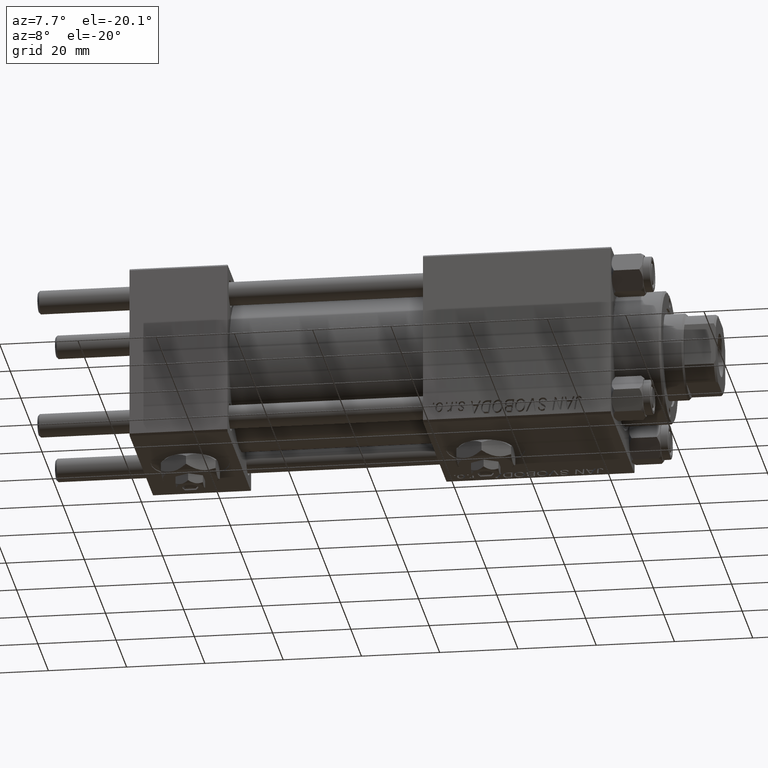
[diagram: clean part render]
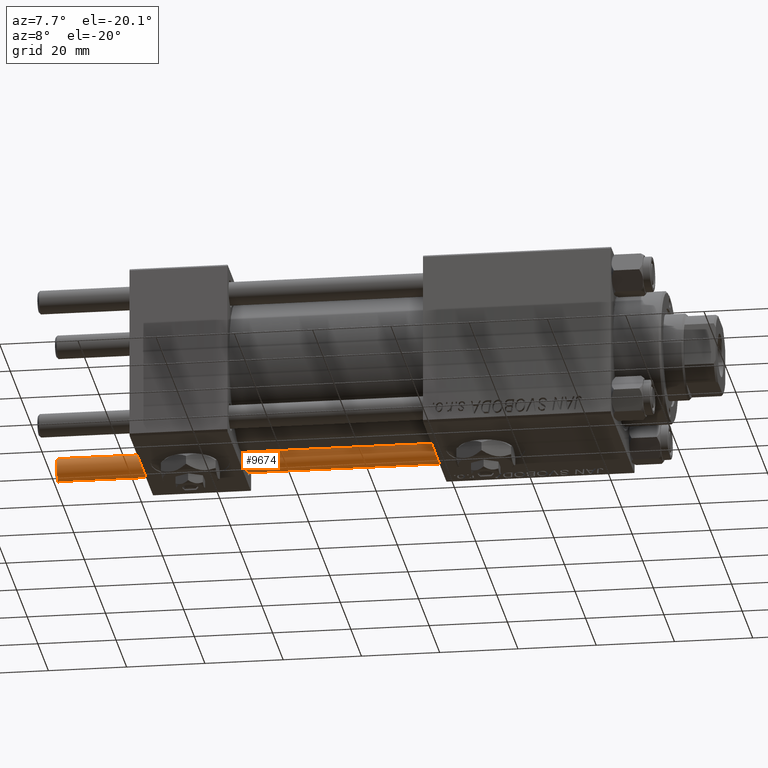
[diagram: same view with one face highlighted and labeled with its STEP entity id]
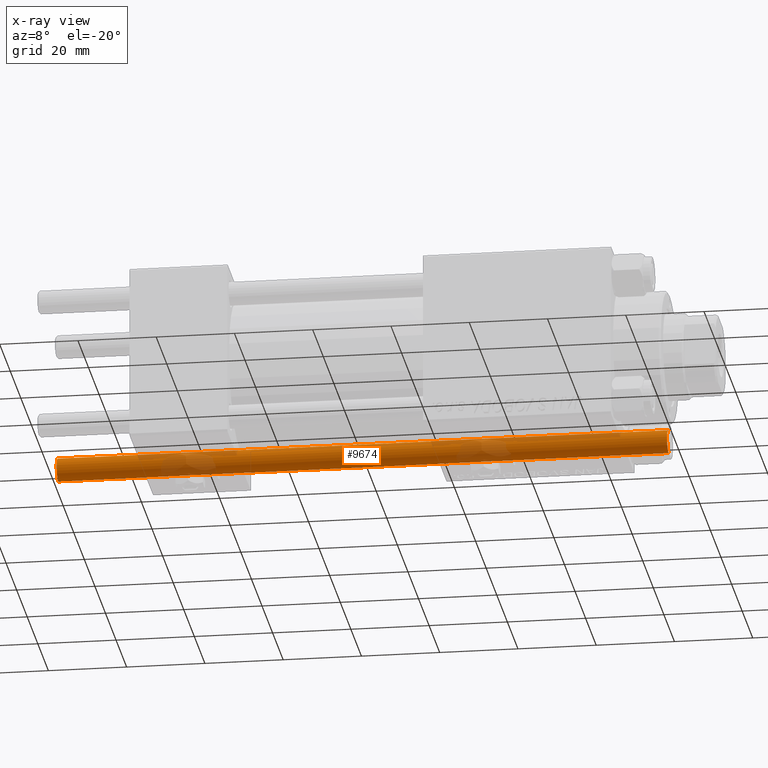
[diagram: x-ray of the same camera — body ghosted, the highlighted face saturated]
A machine part, auxiliary view. The second image highlights one B-rep face of the part: STEP entity #9674.
The next image is the same camera in x-ray: the body ghosted, the highlighted face saturated — about 23% of this face is hidden behind the body in this view.
In plain terms, the highlighted cylindrical surface (edge-blend (fillet) strip) has radius 3 mm, axis along (1, 0, -0).
Its self-contained STEP definition (entity closure, byte-faithful):
#2583 = AXIS2_PLACEMENT_3D ( 'NONE', #49003, #31877, #8993 ) ;
#3523 = CARTESIAN_POINT ( 'NONE',  ( 3.000000000000000444, 3.673940397442060361E-16, 157.0000000000000000 ) ) ;
#4292 = VERTEX_POINT ( 'NONE', #47433 ) ;
#6679 = EDGE_CURVE ( 'NONE', #4292, #27499, #40119, .T. ) ;
#8993 = DIRECTION ( 'NONE',  ( 1.000000000000000000, 0.000000000000000000, 0.000000000000000000 ) ) ;
#9674 = ADVANCED_FACE ( 'NONE', ( #49037 ), #29008, .T. ) ;
#9785 = CARTESIAN_POINT ( 'NONE',  ( 0.000000000000000000, 0.000000000000000000, 157.0000000000000000 ) ) ;
#11453 = ORIENTED_EDGE ( 'NONE', *, *, #14252, .F. ) ;
#12048 = ORIENTED_EDGE ( 'NONE', *, *, #31584, .T. ) ;
#12381 = CARTESIAN_POINT ( 'NONE',  ( 0.000000000000000000, 0.000000000000000000, 0.4999999999999726885 ) ) ;
#12694 = CARTESIAN_POINT ( 'NONE',  ( 3.000000000000000444, 3.673940397442060361E-16, 0.4999999999999726885 ) ) ;
#13012 = CARTESIAN_POINT ( 'NONE',  ( -3.000000000000000444, 0.000000000000000000, 157.0000000000000000 ) ) ;
#13217 = DIRECTION ( 'NONE',  ( -1.000000000000000000, 0.000000000000000000, 0.000000000000000000 ) ) ;
#14252 = EDGE_CURVE ( 'NONE', #37541, #16167, #31152, .T. ) ;
#15865 = AXIS2_PLACEMENT_3D ( 'NONE', #9785, #45080, #13217 ) ;
#16167 = VERTEX_POINT ( 'NONE', #12694 ) ;
#21328 = EDGE_CURVE ( 'NONE', #27499, #16167, #36000, .T. ) ;
#24072 = VECTOR ( 'NONE', #32411, 1000.000000000000000 ) ;
#24481 = DIRECTION ( 'NONE',  ( -0.000000000000000000, -0.000000000000000000, 1.000000000000000000 ) ) ;
#27499 = VERTEX_POINT ( 'NONE', #48435 ) ;
#28441 = AXIS2_PLACEMENT_3D ( 'NONE', #12381, #24481, #44499 ) ;
#29008 = CYLINDRICAL_SURFACE ( 'NONE', #15865, 3.000000000000000444 ) ;
#31152 = LINE ( 'NONE', #3523, #24072 ) ;
#31584 = EDGE_CURVE ( 'NONE', #37541, #4292, #47159, .T. ) ;
#31877 = DIRECTION ( 'NONE',  ( 0.000000000000000000, 0.000000000000000000, -1.000000000000000000 ) ) ;
#32411 = DIRECTION ( 'NONE',  ( -0.000000000000000000, -0.000000000000000000, -1.000000000000000000 ) ) ;
#36000 = CIRCLE ( 'NONE', #28441, 3.000000000000000444 ) ;
#37541 = VERTEX_POINT ( 'NONE', #42040 ) ;
#38732 = EDGE_LOOP ( 'NONE', ( #11453, #12048, #45740, #51980 ) ) ;
#39391 = VECTOR ( 'NONE', #45124, 1000.000000000000000 ) ;
#40119 = LINE ( 'NONE', #13012, #39391 ) ;
#42040 = CARTESIAN_POINT ( 'NONE',  ( 3.000000000000000444, 3.673940397442060361E-16, 156.5000000000000284 ) ) ;
#44499 = DIRECTION ( 'NONE',  ( 1.000000000000000000, 0.000000000000000000, 0.000000000000000000 ) ) ;
#45080 = DIRECTION ( 'NONE',  ( -0.000000000000000000, -0.000000000000000000, -1.000000000000000000 ) ) ;
#45124 = DIRECTION ( 'NONE',  ( -0.000000000000000000, -0.000000000000000000, -1.000000000000000000 ) ) ;
#45740 = ORIENTED_EDGE ( 'NONE', *, *, #6679, .T. ) ;
#47159 = CIRCLE ( 'NONE', #2583, 3.000000000000000444 ) ;
#47433 = CARTESIAN_POINT ( 'NONE',  ( -3.000000000000000444, 0.000000000000000000, 156.5000000000000284 ) ) ;
#48435 = CARTESIAN_POINT ( 'NONE',  ( -3.000000000000000444, 0.000000000000000000, 0.4999999999999726885 ) ) ;
#49003 = CARTESIAN_POINT ( 'NONE',  ( 0.000000000000000000, 0.000000000000000000, 156.5000000000000284 ) ) ;
#49037 = FACE_OUTER_BOUND ( 'NONE', #38732, .T. ) ;
#51980 = ORIENTED_EDGE ( 'NONE', *, *, #21328, .T. ) ;